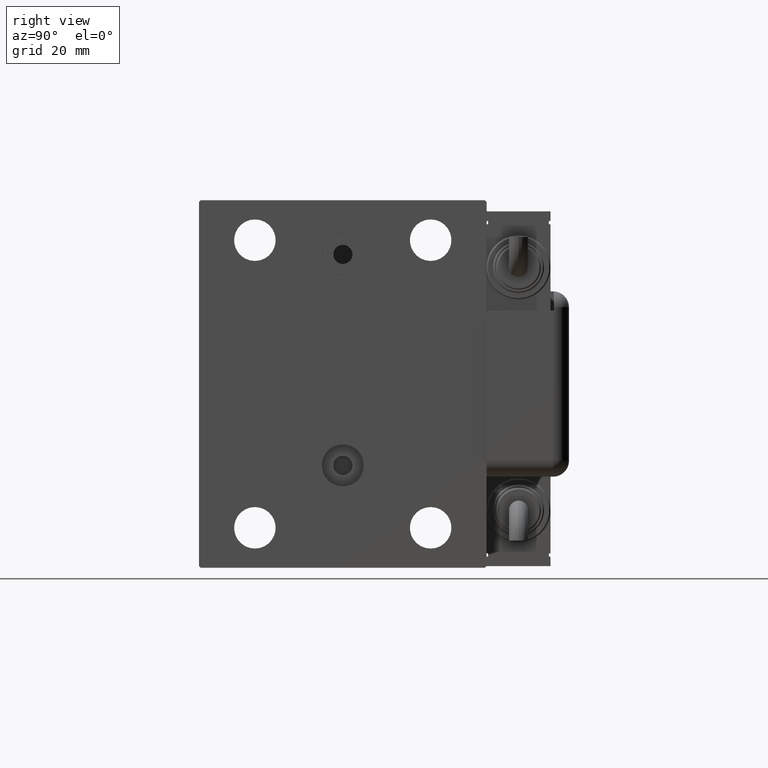
[diagram: clean part render]
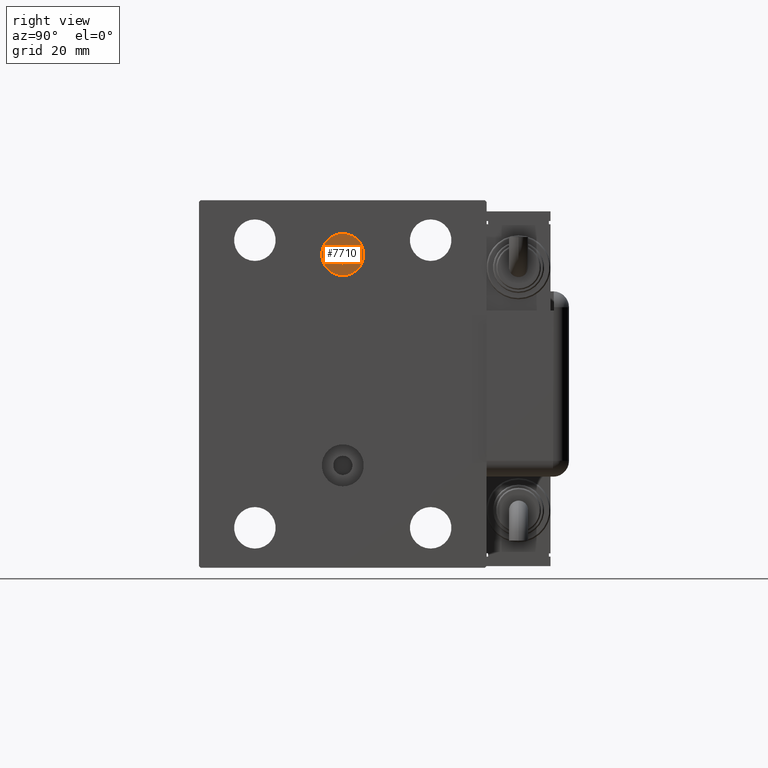
[diagram: same view with one face highlighted and labeled with its STEP entity id]
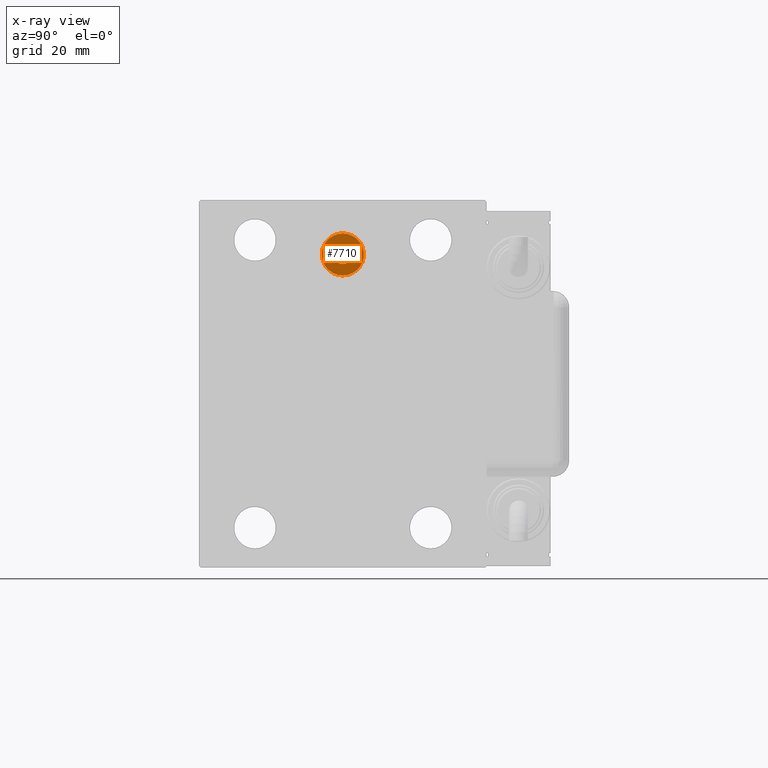
[diagram: x-ray of the same camera — body ghosted, the highlighted face saturated]
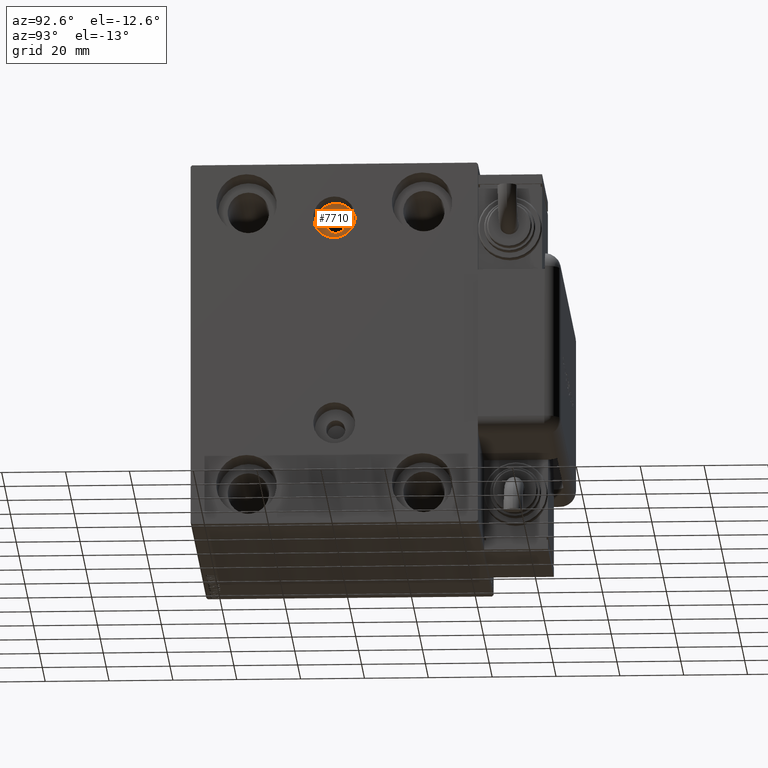
[diagram: same view with one face highlighted and labeled with its STEP entity id]
A machine part, right view. The second image highlights one B-rep face of the part: STEP entity #7710.
The next image is the same camera in x-ray: the body ghosted, the highlighted face saturated — about 0% of this face is hidden behind the body in this view.
A second angle (auxiliary view) of the same face is appended — the face is thin or edge-on in the first view.
In plain terms, the highlighted planar face has unit normal (1, 0, 0).
Its self-contained STEP definition (entity closure, byte-faithful):
#2055 = VERTEX_POINT ( 'NONE', #41257 ) ;
#2158 = CIRCLE ( 'NONE', #31016, 3.000000000000002665 ) ;
#3059 = CIRCLE ( 'NONE', #24243, 3.000000000000002665 ) ;
#3516 = ORIENTED_EDGE ( 'NONE', *, *, #57388, .F. ) ;
#6817 = CIRCLE ( 'NONE', #26022, 6.580000000000002736 ) ;
#7710 = ADVANCED_FACE ( 'NONE', ( #43077, #28903 ), #53020, .T. ) ;
#8939 = EDGE_CURVE ( 'NONE', #2055, #27333, #6817, .T. ) ;
#9842 = DIRECTION ( 'NONE',  ( 0.000000000000000000, 0.000000000000000000, -1.000000000000000000 ) ) ;
#10773 = DIRECTION ( 'NONE',  ( 0.000000000000000000, 0.000000000000000000, -1.000000000000000000 ) ) ;
#20169 = CARTESIAN_POINT ( 'NONE',  ( 98.00000000000000000, -5.306417150674643778E-15, 40.50000000000000711 ) ) ;
#21196 = AXIS2_PLACEMENT_3D ( 'NONE', #20169, #25290, #48493 ) ;
#21361 = CARTESIAN_POINT ( 'NONE',  ( 98.00000000000000000, -5.306417150674643778E-15, 40.50000000000000711 ) ) ;
#22741 = VERTEX_POINT ( 'NONE', #42991 ) ;
#24243 = AXIS2_PLACEMENT_3D ( 'NONE', #24617, #38786, #10773 ) ;
#24617 = CARTESIAN_POINT ( 'NONE',  ( 98.00000000000000000, -5.306417150674643778E-15, 40.50000000000000711 ) ) ;
#25214 = ORIENTED_EDGE ( 'NONE', *, *, #8939, .T. ) ;
#25290 = DIRECTION ( 'NONE',  ( 1.000000000000000000, 0.000000000000000000, 0.000000000000000000 ) ) ;
#26022 = AXIS2_PLACEMENT_3D ( 'NONE', #26147, #30363, #45134 ) ;
#26147 = CARTESIAN_POINT ( 'NONE',  ( 98.00000000000000000, -5.306417150674643778E-15, 40.50000000000000711 ) ) ;
#27333 = VERTEX_POINT ( 'NONE', #50104 ) ;
#27971 = ORIENTED_EDGE ( 'NONE', *, *, #59489, .F. ) ;
#28842 = AXIS2_PLACEMENT_3D ( 'NONE', #21361, #35231, #35538 ) ;
#28903 = FACE_OUTER_BOUND ( 'NONE', #53112, .T. ) ;
#30363 = DIRECTION ( 'NONE',  ( 1.000000000000000000, 0.000000000000000000, 0.000000000000000000 ) ) ;
#31016 = AXIS2_PLACEMENT_3D ( 'NONE', #41788, #38158, #9842 ) ;
#32739 = CIRCLE ( 'NONE', #28842, 6.580000000000002736 ) ;
#35231 = DIRECTION ( 'NONE',  ( 1.000000000000000000, 0.000000000000000000, 0.000000000000000000 ) ) ;
#35538 = DIRECTION ( 'NONE',  ( 0.000000000000000000, 0.000000000000000000, -1.000000000000000000 ) ) ;
#38158 = DIRECTION ( 'NONE',  ( 1.000000000000000000, 0.000000000000000000, 0.000000000000000000 ) ) ;
#38786 = DIRECTION ( 'NONE',  ( 1.000000000000000000, 0.000000000000000000, 0.000000000000000000 ) ) ;
#39073 = ORIENTED_EDGE ( 'NONE', *, *, #53001, .T. ) ;
#40004 = VERTEX_POINT ( 'NONE', #52359 ) ;
#41257 = CARTESIAN_POINT ( 'NONE',  ( 98.00000000000000000, -5.306417150674643778E-15, 33.92000000000000881 ) ) ;
#41788 = CARTESIAN_POINT ( 'NONE',  ( 98.00000000000000000, -5.306417150674643778E-15, 40.50000000000000711 ) ) ;
#42991 = CARTESIAN_POINT ( 'NONE',  ( 98.00000000000000000, -5.306417150674643778E-15, 37.50000000000000711 ) ) ;
#43077 = FACE_BOUND ( 'NONE', #54665, .T. ) ;
#45134 = DIRECTION ( 'NONE',  ( 0.000000000000000000, 0.000000000000000000, -1.000000000000000000 ) ) ;
#48493 = DIRECTION ( 'NONE',  ( 0.000000000000000000, 0.000000000000000000, -1.000000000000000000 ) ) ;
#50104 = CARTESIAN_POINT ( 'NONE',  ( 98.00000000000000000, -4.500599556835684736E-15, 47.08000000000001251 ) ) ;
#52359 = CARTESIAN_POINT ( 'NONE',  ( 98.00000000000000000, -4.939023110930437544E-15, 43.50000000000001421 ) ) ;
#53001 = EDGE_CURVE ( 'NONE', #27333, #2055, #32739, .T. ) ;
#53020 = PLANE ( 'NONE',  #21196 ) ;
#53112 = EDGE_LOOP ( 'NONE', ( #25214, #39073 ) ) ;
#54665 = EDGE_LOOP ( 'NONE', ( #27971, #3516 ) ) ;
#57388 = EDGE_CURVE ( 'NONE', #40004, #22741, #3059, .T. ) ;
#59489 = EDGE_CURVE ( 'NONE', #22741, #40004, #2158, .T. ) ;